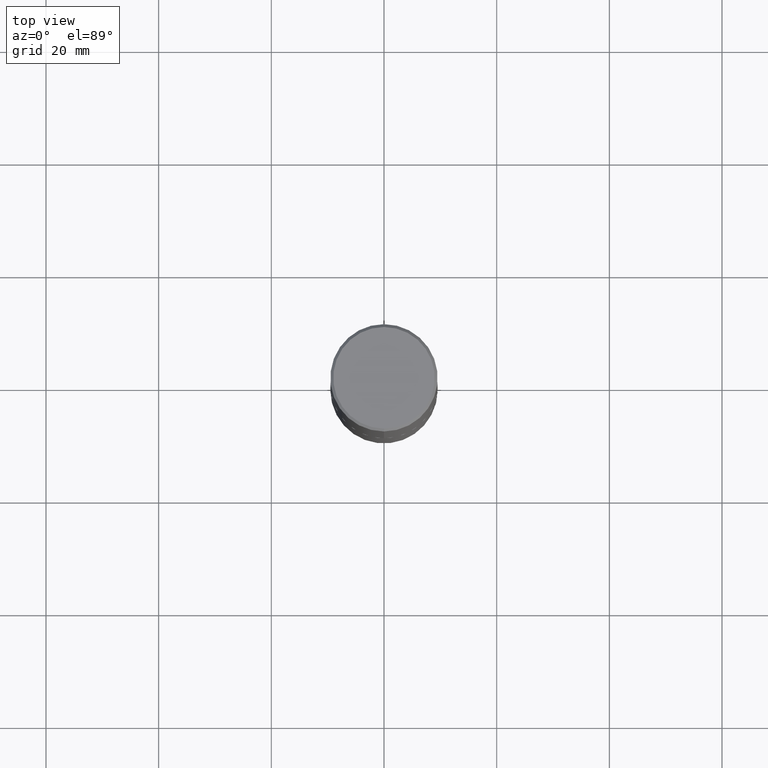
[diagram: clean part render]
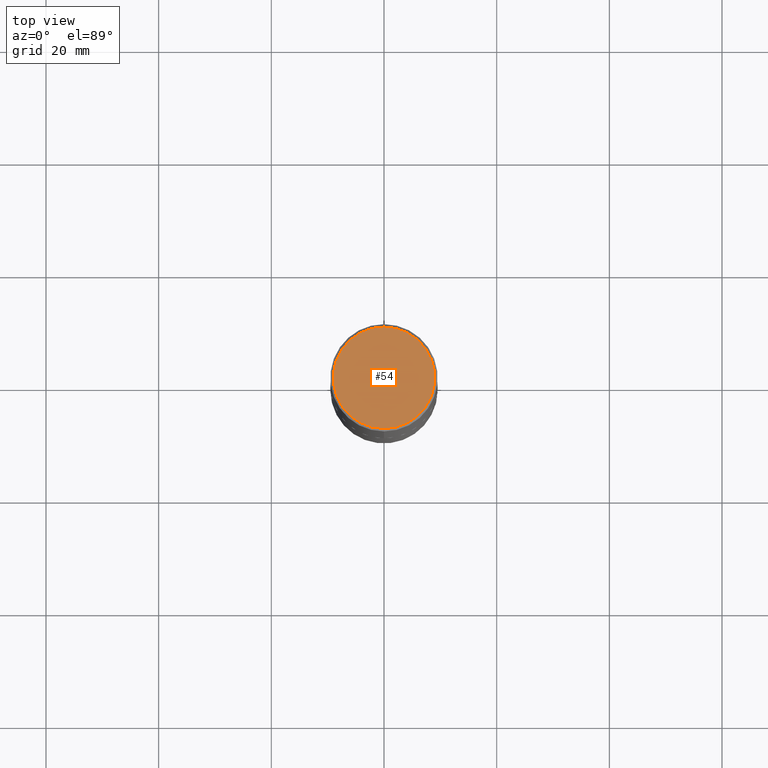
[diagram: same view with one face highlighted and labeled with its STEP entity id]
A machine part, top view. The second image highlights one B-rep face of the part: STEP entity #54.
In plain terms, the highlighted planar face has unit normal (0, -0, -1).
Its self-contained STEP definition (entity closure, byte-faithful):
#14 = CARTESIAN_POINT ( 'NONE',  ( -1.141397163745304909E-45, 1.628849886601155835E-31, 4.666305460853910467E-17 ) ) ;
#17 = VERTEX_POINT ( 'NONE', #314 ) ;
#54 = ADVANCED_FACE ( 'NONE', ( #66 ), #283, .F. ) ;
#66 = FACE_OUTER_BOUND ( 'NONE', #331, .T. ) ;
#71 = DIRECTION ( 'NONE',  ( 2.446040391741596045E-29, -3.490662795793665557E-15, -1.000000000000000000 ) ) ;
#76 = CIRCLE ( 'NONE', #207, 0.3549999999999999822 ) ;
#83 = CARTESIAN_POINT ( 'NONE',  ( -2.504081769186608216E-15, -0.3549999999999999822, 1.285848347115290366E-15 ) ) ;
#106 = EDGE_CURVE ( 'NONE', #210, #17, #76, .T. ) ;
#116 = AXIS2_PLACEMENT_3D ( 'NONE', #14, #310, #306 ) ;
#144 = CIRCLE ( 'NONE', #116, 0.3549999999999999822 ) ;
#171 = CARTESIAN_POINT ( 'NONE',  ( 2.478951750578624209E-15, 0.3549999999999999822, -1.215853765202481601E-15 ) ) ;
#207 = AXIS2_PLACEMENT_3D ( 'NONE', #392, #298, #368 ) ;
#210 = VERTEX_POINT ( 'NONE', #83 ) ;
#213 = ORIENTED_EDGE ( 'NONE', *, *, #106, .T. ) ;
#222 = EDGE_CURVE ( 'NONE', #17, #210, #144, .T. ) ;
#238 = ORIENTED_EDGE ( 'NONE', *, *, #222, .T. ) ;
#283 = PLANE ( 'NONE',  #362 ) ;
#298 = DIRECTION ( 'NONE',  ( -2.446040391741596606E-29, 3.490662795793665557E-15, 1.000000000000000000 ) ) ;
#306 = DIRECTION ( 'NONE',  ( -6.982962677686265922E-15, -1.000000000000000000, 3.490662795793665557E-15 ) ) ;
#310 = DIRECTION ( 'NONE',  ( -2.446040391741596606E-29, 3.490662795793665557E-15, 1.000000000000000000 ) ) ;
#314 = CARTESIAN_POINT ( 'NONE',  ( 2.548781377355487113E-15, 0.3549999999999999822, -1.192522237898212341E-15 ) ) ;
#331 = EDGE_LOOP ( 'NONE', ( #238, #213 ) ) ;
#362 = AXIS2_PLACEMENT_3D ( 'NONE', #171, #71, #365 ) ;
#365 = DIRECTION ( 'NONE',  ( 6.982962677686265922E-15, 1.000000000000000000, -3.490662795793665557E-15 ) ) ;
#368 = DIRECTION ( 'NONE',  ( -6.982962677686265922E-15, -1.000000000000000000, 3.490662795793665557E-15 ) ) ;
#392 = CARTESIAN_POINT ( 'NONE',  ( -1.141397163745304909E-45, 1.628849886601155835E-31, 4.666305460853910467E-17 ) ) ;